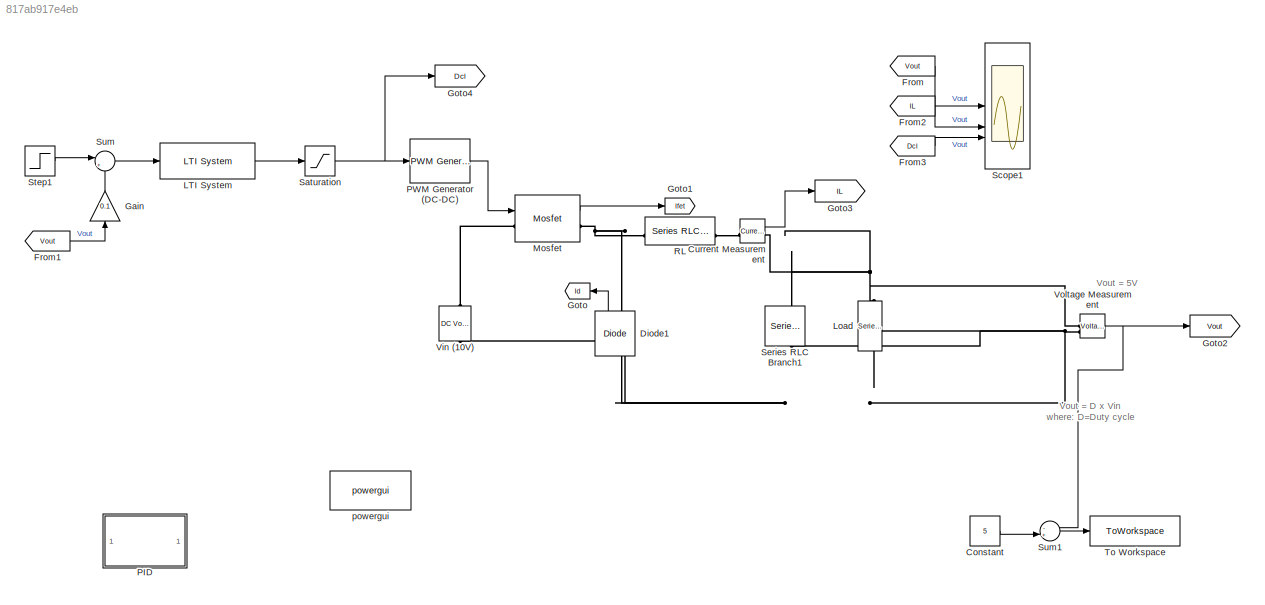
MODEL slx_817ab917e4eb
KIND model
CONFIG AbsTol = auto
CONFIG EnableMultiTasking = off
CONFIG FixedStep = auto
CONFIG MaxStep = auto
CONFIG MinStep = auto
CONFIG RelTol = 1e-3
CONFIG SampleTimeConstraint = Unconstrained
CONFIG SolverName = VariableStepAuto
CONFIG StartTime = 0.0
CONFIG StopTime = 4e-3
BLOCK [Constant] Constant
  Value = 5
BLOCK [Reference] Current Measurement  REF=spsCurrentMeasurementLib/Current Measurement
  LibrarySourceBlock = sps_lib/Sensors and Measurements/Current Measurement
  SourceBlock = spsCurrentMeasurementLib/Current Measurement
  SourceType = Current Measurement
  UserDataPersistent = on
BLOCK [Reference] Diode1  REF=spsDiodeLib/Diode
  LibrarySourceBlock = sps_lib/Power Electronics/Diode
  NameLocation = right
  SourceBlock = spsDiodeLib/Diode
  SourceType = Diode
BLOCK [From] From
  GotoTag = Vout
BLOCK [From] From1
  GotoTag = Vout
BLOCK [From] From2
  GotoTag = IL
BLOCK [From] From3
  GotoTag = Dcl
BLOCK [Gain] Gain
  Gain = 0.1
  NameLocation = right
BLOCK [Goto] Goto
  GotoTag = Id
BLOCK [Goto] Goto1
  GotoTag = Ifet
BLOCK [Goto] Goto2
  GotoTag = Vout
BLOCK [Goto] Goto3
  GotoTag = IL
BLOCK [Goto] Goto4
  GotoTag = Dcl
BLOCK [Reference] LTI System  REF=cstblocks/LTI System
  SourceBlock = cstblocks/LTI System
  SourceType = LTI Block
BLOCK [Reference] Load  REF=spsSeriesRLCBranchLib/Series RLC Branch
  LibrarySourceBlock = sps_lib/Passives/Series RLC Branch
  NameLocation = left
  SourceBlock = spsSeriesRLCBranchLib/Series RLC Branch
  SourceType = Series RLC Branch
BLOCK [Reference] Mosfet  REF=spsMosfetLib/Mosfet
  LibrarySourceBlock = sps_lib/Power Electronics/Mosfet
  SourceBlock = spsMosfetLib/Mosfet
  SourceType = Mosfet
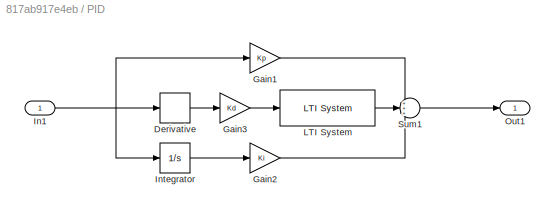
BLOCK [SubSystem] PID
BLOCK [Derivative] PID/Derivative
BLOCK [Gain] PID/Gain1
  Gain = Kp
BLOCK [Gain] PID/Gain2
  Gain = Ki
BLOCK [Gain] PID/Gain3
  Gain = Kd
BLOCK [Inport] PID/In1
BLOCK [Integrator] PID/Integrator
BLOCK [Reference] PID/LTI System  REF=cstblocks/LTI System
  SourceBlock = cstblocks/LTI System
  SourceType = LTI Block
BLOCK [Outport] PID/Out1
BLOCK [Sum] PID/Sum1
  Inputs = +++
BLOCK [Reference] PWM Generator (DC-DC)  REF=spsPWMGeneratorDCDCLib/PWM Generator
(DC-DC)
  LibrarySourceBlock = sps_lib/Power Electronics/Power Electronics Control/PWM Generator\n(DC-DC)
  NameLocation = top
  SourceBlock = spsPWMGeneratorDCDCLib/PWM Generator\n(DC-DC)
  SourceType = PWM Generator (DC-DC)
BLOCK [Reference] RL  REF=spsSeriesRLCBranchLib/Series RLC Branch
  LibrarySourceBlock = sps_lib/Passives/Series RLC Branch
  SourceBlock = spsSeriesRLCBranchLib/Series RLC Branch
  SourceType = Series RLC Branch
BLOCK [Saturate] Saturation
  LowerLimit = 0
  UpperLimit = 1
BLOCK [Scope] Scope1
  Floating = off
  NumInputPorts = 3
  ScopeSpecificationString = Simulink.scopes.TimeScopeBlockCfg('CurrentConfiguration', extmgr.ConfigurationSet(extmgr.Configuration('Core','General UI',true),extmgr.Configuration('Core','Source UI',true),extmgr.Configuration('Sources','WiredSimulink',true),extmgr.Configuration('Visuals','Time Domain',true,'SerializedDisplays',{struct('MinYLimReal','4.58345','MaxYLimReal','6.64615','YLabelReal','','MinYLimMag','4.58345','MaxYL...<+2762ch>
BLOCK [Reference] Series RLC Branch1  REF=spsSeriesRLCBranchLib/Series RLC Branch
  LibrarySourceBlock = sps_lib/Passives/Series RLC Branch
  NameLocation = left
  SourceBlock = spsSeriesRLCBranchLib/Series RLC Branch
  SourceType = Series RLC Branch
BLOCK [Step] Step1
  After = 0.5
  Before = 0.5
  SampleTime = 0
  Time = 0
BLOCK [Sum] Sum
  Inputs = |+-
BLOCK [Sum] Sum1
  Inputs = -+|
  NameLocation = top
BLOCK [ToWorkspace] To Workspace
  FixptAsFi = on
  MaxDataPoints = inf
  SampleTime = -1
  VariableName = erro
BLOCK [Reference] Vin (10V)  REF=spsDCVoltageSourceLib/DC Voltage Source
  LibrarySourceBlock = sps_lib/Sources/DC Voltage Source
  NameLocation = left
  SourceBlock = spsDCVoltageSourceLib/DC Voltage Source
  SourceType = DC Voltage Source
BLOCK [Reference] Voltage Measurement  REF=spsVoltageMeasurementLib/Voltage Measurement
  LibrarySourceBlock = sps_lib/Sensors and Measurements/Voltage Measurement
  SourceBlock = spsVoltageMeasurementLib/Voltage Measurement
  SourceType = Voltage Measurement
  UserDataPersistent = on
BLOCK [Reference] powergui  REF=sps_lib/powergui
  LibrarySourceBlock = sps_lib/powergui
  Priority = 1
  SourceBlock = sps_lib/powergui
  SourceType = PSB option menu block
ANNOTATION (root): Vout = 5V
ANNOTATION (root): Vout = D x Vin where: D=Duty cycle
LINE Constant:1 -> Sum1:2
LINE Current Measurement:1 -> Goto3:1
LINE Diode1:1 -> Goto:1
LINE From1:1 -> Gain:1
LINE From2:1 -> Scope1:2
LINE From3:1 -> Scope1:3
LINE From:1 -> Scope1:1
LINE Gain:1 -> Sum:2
LINE LTI System:1 -> Saturation:1
LINE Mosfet:1 -> Goto1:1
LINE PID/Derivative:1 -> PID/Gain3:1
LINE PID/Gain1:1 -> PID/Sum1:1
LINE PID/Gain2:1 -> PID/Sum1:3
LINE PID/Gain3:1 -> PID/LTI System:1
NET PID/In1:1 -> PID/Derivative:1, PID/Gain1:1, PID/Integrator:1
LINE PID/Integrator:1 -> PID/Gain2:1
LINE PID/LTI System:1 -> PID/Sum1:2
LINE PID/Sum1:1 -> PID/Out1:1
LINE PWM Generator (DC-DC):1 -> Mosfet:1
NET Saturation:1 -> Goto4:1, PWM Generator (DC-DC):1
LINE Step1:1 -> Sum:1
LINE Sum1:1 -> To Workspace:1
LINE Sum:1 -> LTI System:1
NET Voltage Measurement:1 -> Goto2:1, Sum1:1
PLINE Current Measurement:LConn1 -- RL:RConn1
PNET net1: Current Measurement:RConn1 -- Load:LConn1 -- Series RLC Branch1:LConn1 -- Voltage Measurement:LConn1
PNET net2: Diode1:LConn1 -- Load:RConn1 -- Series RLC Branch1:RConn1 -- Vin (10V):LConn1 -- Voltage Measurement:LConn2
PNET net3: Diode1:RConn1 -- Mosfet:RConn1 -- RL:LConn1
PLINE Mosfet:LConn1 -- Vin (10V):RConn1
note: NET lines group one-source signal fan-out (src -> all destinations, sorted); 1:1 wires keep LINE; PNET lines group multi-terminal physical nets as a canonical sorted terminal list (undirected conserving connections); 2-terminal nets keep the pairwise PLINE form
